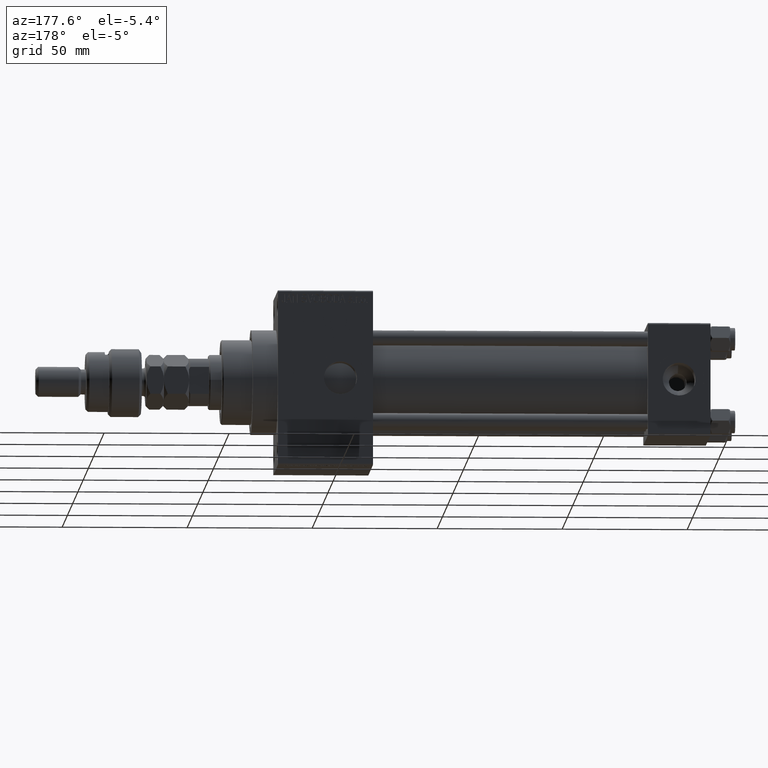
[diagram: clean part render]
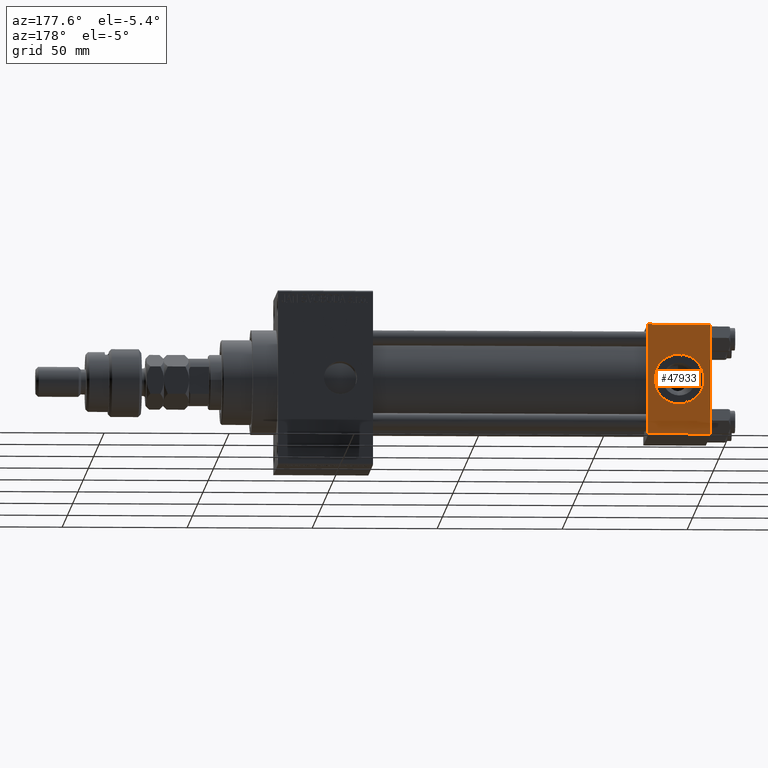
[diagram: same view with one face highlighted and labeled with its STEP entity id]
A machine part, auxiliary view. The second image highlights one B-rep face of the part: STEP entity #47933.
In plain terms, the highlighted planar face has unit normal (0, 1, 0).
Its self-contained STEP definition (entity closure, byte-faithful):
#95 = ORIENTED_EDGE ( 'NONE', *, *, #49678, .T. ) ;
#123 = EDGE_CURVE ( 'NONE', #45902, #5003, #2571, .T. ) ;
#1659 = CARTESIAN_POINT ( 'NONE',  ( 12.50000000000000000, 22.50000000000000000, 9.999999999999996447 ) ) ;
#2309 = DIRECTION ( 'NONE',  ( -1.000000000000000000, 0.000000000000000000, 0.000000000000000000 ) ) ;
#2571 = LINE ( 'NONE', #10466, #14656 ) ;
#3402 = CARTESIAN_POINT ( 'NONE',  ( 25.00000000000000000, 22.50000000000000000, 22.50000000000000355 ) ) ;
#3670 = CARTESIAN_POINT ( 'NONE',  ( 12.50000000000000178, 22.50000000000000000, -9.999999999999996447 ) ) ;
#5003 = VERTEX_POINT ( 'NONE', #44332 ) ;
#5441 = EDGE_CURVE ( 'NONE', #43531, #10827, #39920, .T. ) ;
#5519 = DIRECTION ( 'NONE',  ( 0.000000000000000000, 0.000000000000000000, -1.000000000000000000 ) ) ;
#5591 = EDGE_LOOP ( 'NONE', ( #23295, #12587, #51677, #95 ) ) ;
#7363 = DIRECTION ( 'NONE',  ( 0.000000000000000000, 0.000000000000000000, -1.000000000000000000 ) ) ;
#8801 = DIRECTION ( 'NONE',  ( 0.000000000000000000, 0.000000000000000000, 1.000000000000000000 ) ) ;
#10466 = CARTESIAN_POINT ( 'NONE',  ( 25.00000000000000000, 22.50000000000000000, -21.99999999999998224 ) ) ;
#10827 = VERTEX_POINT ( 'NONE', #3670 ) ;
#12227 = AXIS2_PLACEMENT_3D ( 'NONE', #33219, #45043, #8801 ) ;
#12587 = ORIENTED_EDGE ( 'NONE', *, *, #123, .T. ) ;
#13305 = EDGE_CURVE ( 'NONE', #14599, #5003, #33383, .T. ) ;
#13423 = CARTESIAN_POINT ( 'NONE',  ( 0.000000000000000000, 22.50000000000000000, 22.50000000000000355 ) ) ;
#13568 = DIRECTION ( 'NONE',  ( 0.000000000000000000, 0.000000000000000000, 1.000000000000000000 ) ) ;
#14599 = VERTEX_POINT ( 'NONE', #28418 ) ;
#14656 = VECTOR ( 'NONE', #2309, 1000.000000000000000 ) ;
#18860 = VECTOR ( 'NONE', #7363, 1000.000000000000000 ) ;
#19533 = FACE_OUTER_BOUND ( 'NONE', #5591, .T. ) ;
#19806 = CIRCLE ( 'NONE', #35731, 9.999999999999996447 ) ;
#19860 = VECTOR ( 'NONE', #50819, 1000.000000000000000 ) ;
#21927 = CARTESIAN_POINT ( 'NONE',  ( 25.00000000000000000, 22.50000000000000000, 21.99999999999999645 ) ) ;
#23295 = ORIENTED_EDGE ( 'NONE', *, *, #30430, .T. ) ;
#24816 = AXIS2_PLACEMENT_3D ( 'NONE', #35039, #51560, #31098 ) ;
#26694 = LINE ( 'NONE', #38723, #19860 ) ;
#28418 = CARTESIAN_POINT ( 'NONE',  ( 0.000000000000000000, 22.50000000000000000, 21.99999999999999645 ) ) ;
#29355 = CARTESIAN_POINT ( 'NONE',  ( 12.50000000000000000, 22.50000000000000000, 0.000000000000000000 ) ) ;
#29982 = EDGE_LOOP ( 'NONE', ( #38471, #48996 ) ) ;
#30430 = EDGE_CURVE ( 'NONE', #33501, #45902, #43341, .T. ) ;
#31098 = DIRECTION ( 'NONE',  ( 0.000000000000000000, -0.000000000000000000, 1.000000000000000000 ) ) ;
#31624 = FACE_BOUND ( 'NONE', #29982, .T. ) ;
#31850 = CARTESIAN_POINT ( 'NONE',  ( 25.00000000000000000, 22.50000000000000000, -21.99999999999996803 ) ) ;
#33219 = CARTESIAN_POINT ( 'NONE',  ( 12.50000000000000000, 22.50000000000000000, 0.000000000000000000 ) ) ;
#33383 = LINE ( 'NONE', #13423, #39546 ) ;
#33501 = VERTEX_POINT ( 'NONE', #21927 ) ;
#35039 = CARTESIAN_POINT ( 'NONE',  ( 25.00000000000000000, 22.50000000000000000, 22.50000000000000355 ) ) ;
#35548 = PLANE ( 'NONE',  #24816 ) ;
#35731 = AXIS2_PLACEMENT_3D ( 'NONE', #29355, #48523, #13568 ) ;
#36164 = EDGE_CURVE ( 'NONE', #10827, #43531, #19806, .T. ) ;
#38471 = ORIENTED_EDGE ( 'NONE', *, *, #5441, .F. ) ;
#38723 = CARTESIAN_POINT ( 'NONE',  ( 25.00000000000000000, 22.50000000000000000, 21.99999999999999645 ) ) ;
#39546 = VECTOR ( 'NONE', #5519, 1000.000000000000000 ) ;
#39920 = CIRCLE ( 'NONE', #12227, 9.999999999999996447 ) ;
#43341 = LINE ( 'NONE', #3402, #18860 ) ;
#43531 = VERTEX_POINT ( 'NONE', #1659 ) ;
#44332 = CARTESIAN_POINT ( 'NONE',  ( 0.000000000000000000, 22.50000000000000000, -21.99999999999996803 ) ) ;
#45043 = DIRECTION ( 'NONE',  ( 0.000000000000000000, 1.000000000000000000, 0.000000000000000000 ) ) ;
#45902 = VERTEX_POINT ( 'NONE', #31850 ) ;
#47933 = ADVANCED_FACE ( 'NONE', ( #31624, #19533 ), #35548, .T. ) ;
#48523 = DIRECTION ( 'NONE',  ( 0.000000000000000000, 1.000000000000000000, 0.000000000000000000 ) ) ;
#48996 = ORIENTED_EDGE ( 'NONE', *, *, #36164, .F. ) ;
#49678 = EDGE_CURVE ( 'NONE', #14599, #33501, #26694, .T. ) ;
#50819 = DIRECTION ( 'NONE',  ( 1.000000000000000000, 0.000000000000000000, 0.000000000000000000 ) ) ;
#51560 = DIRECTION ( 'NONE',  ( -0.000000000000000000, 1.000000000000000000, 0.000000000000000000 ) ) ;
#51677 = ORIENTED_EDGE ( 'NONE', *, *, #13305, .F. ) ;